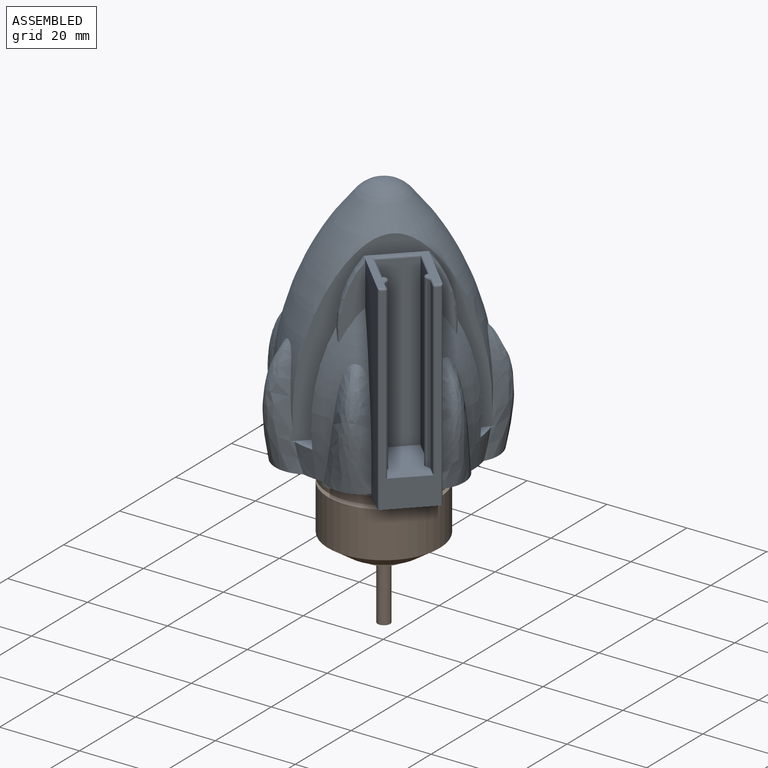
[diagram: assembled view]
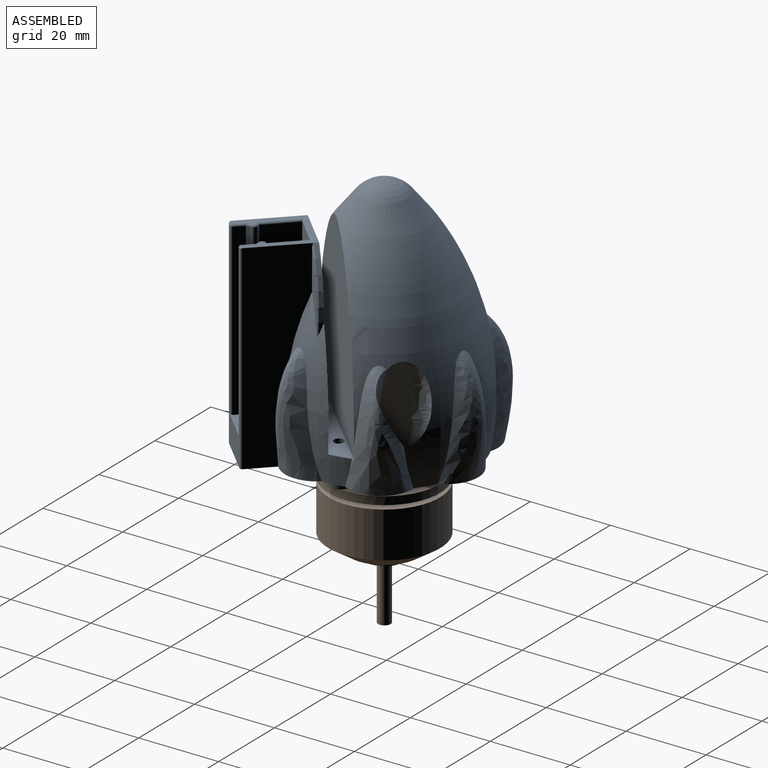
[diagram: assembled view, second angle]
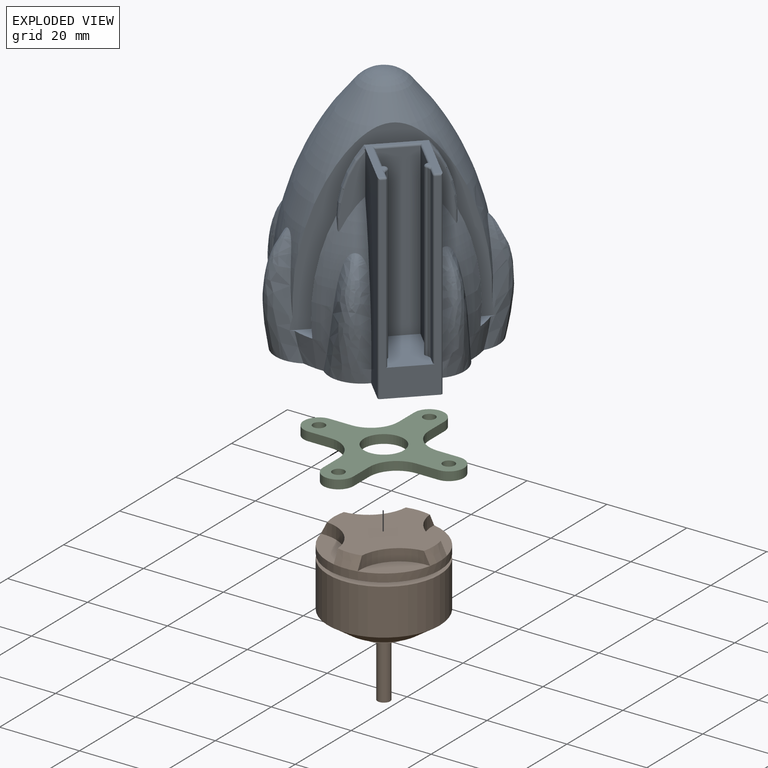
[diagram: exploded view]
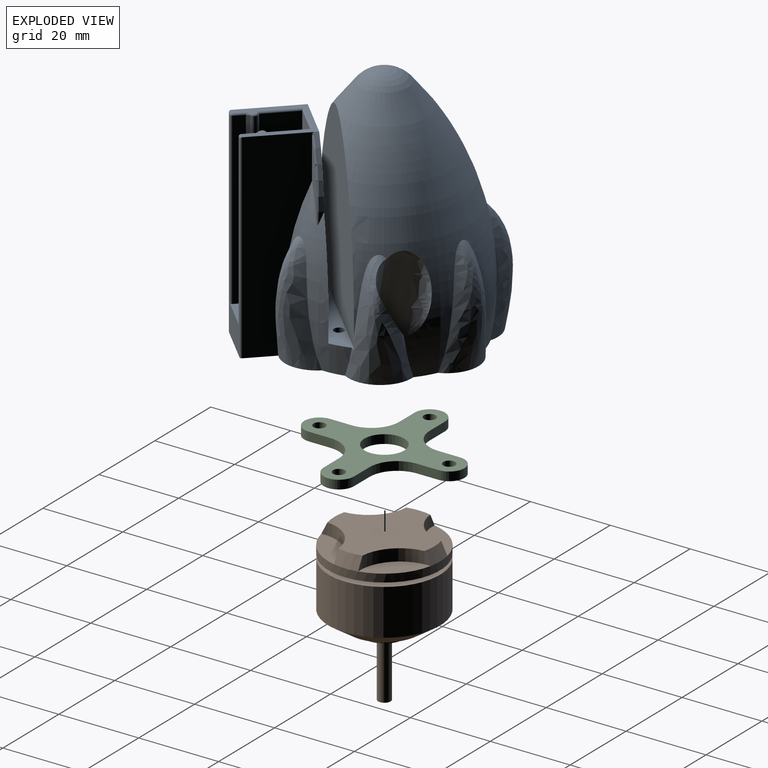
[diagram: exploded view, second angle]
ASSEMBLY  parts=3 mates=4
PART A: 67 faces, bbox 63x60.9x63 mm
  f0: plane 16x13.53mm, normal (0,0,1), area 58.5mm2, adj f3,f35,f39,f42,f43,f50,f52,f54
  f1: plane 1x1mm, normal (0,0,1), area 0.8mm2, adj f57
  f2: plane 1x1mm, normal (0,0,1), area 0.8mm2, adj f53
  f3: plane 43.01x35.56mm, normal (0,1,0), area 1233mm2, adj f0,f5,f8,f26,f42,f43
  f4: plane 17.41x5.25mm, normal (0,-1,0), area 45.6mm2, adj f8,f39,f46,f47
  f5: revolved ~38.97x15.23mm, area 231.5mm2, adj f3,f6,f12,f15,f26,f35,f36,f37
  f6: bspline ~30x16.24mm, area 285.9mm2, adj f5,f12,f35
  f7: bspline ~30x16.24mm, area 285.9mm2, adj f8,f12,f39
  f8: revolved ~38.97x15.23mm, area 231.5mm2, adj f3,f4,f7,f12,f14,f26,f38,f39
  f9: revolved ~57.31x46.2mm, area 3524.6mm2, adj f12,f13,f14,f15,f16,f17,f18,f25
  f10: cylinder r=1.25mm len=7mm, axis (0,0,-1), area 55mm2, adj f12,f26
  f11: cylinder r=1.25mm len=7mm, axis (0,0,-1), area 55mm2, adj f12,f26
  f12: plane 56.26x49.17mm, normal (0,0,-1), area 1642.6mm2, adj f5,f6,f7,f8,f9,f10,f11,f13
  f13: bspline ~27.72x12.38mm, area 340.6mm2, adj f9,f12
  f14: bspline ~27.72x13.67mm, area 342.4mm2, adj f8,f9,f12,f26,f27
  f15: bspline ~27.72x13.67mm, area 283.8mm2, adj f5,f9,f12,f25,f26,f27
  f16: bspline ~27.72x12.38mm, area 340.6mm2, adj f9,f12
  f17: bspline ~27.72x14.02mm, area 340.6mm2, adj f9,f12
  f18: sphere r=8mm, area 135.4mm2, adj f9
  f19: cylinder r=1.25mm len=10mm, axis (0,0,-1), area 78.5mm2, adj f12,f20
  f20: plane 2.5x2.5mm, normal (0,0,-1), area 4.9mm2, adj f19
  f21: cylinder r=1.25mm len=10mm, axis (0,0,-1), area 78.5mm2, adj f12,f22
  f22: plane 2.5x2.5mm, normal (0,0,-1), area 4.9mm2, adj f21
  f23: cylinder r=5mm len=10mm, axis (0,0,-1), area 314.2mm2, adj f12,f24
  f24: plane 10x10mm, normal (0,0,-1), area 78.5mm2, adj f23
  f25: bspline ~30x28.51mm, area 824.5mm2, adj f9,f12,f15
  f26: plane 42.89x4.77mm, normal (0,0,1), area 173.4mm2, adj f3,f5,f8,f10,f11,f14,f15,f27
  f27: plane 45.41x42.96mm, normal (0,-1,0), area 1480.8mm2, adj f9,f14,f15,f26
  f28: plane 42.5x9.53mm, normal (0,-1,0), area 404.8mm2, adj f29,f30,f31,f55
  f29: plane 42.5x9mm, normal (1,0,0), area 382.5mm2, adj f28,f31,f41,f54
  f30: plane 42.5x9mm, normal (-1,0,0), area 382.5mm2, adj f28,f31,f32,f56
  f31: plane 15x10.53mm, normal (0,0,1), area 139.5mm2, adj f28,f29,f30,f32,f33,f34,f40,f41
  f32: cylinder r=1mm len=42.5mm, axis (0,0,-1), area 111.3mm2, adj f30,f31,f57,f63
  f33: plane 42.5x2.77mm, normal (-1,0,0), area 117.6mm2, adj f31,f59,f62,f63
  f34: plane 49.5x12.53mm, normal (0,-1,0), area 172.7mm2, adj f12,f31,f48,f49,f50,f58,f60,f62
  f35: plane 52.97x17.97mm, normal (1,0,0), area 524mm2, adj f0,f5,f6,f12,f36,f44,f58
  f36: plane 17.41x5.25mm, normal (0,-1,0), area 45.6mm2, adj f5,f35,f44,f45
  f37: plane 2.41x1.04mm, normal (1,0,0), area 1.2mm2, adj f5,f42,f45
  f38: plane 2.41x1.04mm, normal (-1,0,0), area 1.2mm2, adj f8,f43,f47
  f39: plane 52.97x17.97mm, normal (-1,0,0), area 524mm2, adj f0,f4,f7,f8,f12,f46,f48
  f40: plane 42.5x2.77mm, normal (1,0,0), area 117.6mm2, adj f31,f49,f52,f65
  f41: cylinder r=1mm len=42.5mm, axis (0,0,-1), area 111.3mm2, adj f29,f31,f53,f65
  f42: cylinder r=23.82mm len=15.51mm, axis (0,-1,0), area 16.9mm2, adj f0,f3,f37,f44
  f43: cylinder r=23.82mm len=15.51mm, axis (0,-1,0), area 16.9mm2, adj f0,f3,f38,f46
  f44: torus R=23.32mm, axis (0,1,0), area 12.9mm2, adj f35,f36,f42,f45
  f45: cylinder r=0.5mm len=3.01mm, axis (0,0,-1), area 2.2mm2, adj f5,f36,f37,f44
  f46: torus R=23.32mm, axis (0,-1,0), area 12.9mm2, adj f4,f39,f43,f47
  f47: cylinder r=0.5mm len=3.01mm, axis (0,0,-1), area 2.2mm2, adj f4,f8,f38,f46
  f48: cylinder r=0.5mm len=50mm, axis (0,0,1), area 39.1mm2, adj f12,f34,f39,f50
  f49: cylinder r=0.5mm len=42.5mm, axis (0,0,1), area 33.4mm2, adj f31,f34,f40,f51
  f50: cylinder r=0.5mm len=1.5mm, axis (1,0,0), area 1mm2, adj f0,f34,f48,f51
  f51: sphere r=0.5mm, area 0.4mm2, adj f49,f50,f52
  f52: cylinder r=0.5mm len=4.5mm, axis (0,-1,0), area 2.5mm2, adj f0,f40,f51,f66
  f53: torus R=0.5mm, axis (0,0,1), area 2.3mm2, adj f2,f41,f54,f66
  f54: cylinder r=0.5mm len=10.5mm, axis (0,-1,0), area 7.7mm2, adj f0,f29,f53,f55
  f55: cylinder r=0.5mm len=10.53mm, axis (1,0,0), area 7.9mm2, adj f0,f28,f54,f56
  f56: cylinder r=0.5mm len=10.5mm, axis (0,1,0), area 7.7mm2, adj f0,f30,f55,f57
  f57: torus R=0.5mm, axis (0,0,1), area 2.3mm2, adj f1,f32,f56,f64
  f58: cylinder r=0.5mm len=50mm, axis (0,0,-1), area 39.1mm2, adj f12,f34,f35,f60
  f59: cylinder r=0.5mm len=4.5mm, axis (0,1,0), area 2.5mm2, adj f0,f33,f61,f64
  f60: cylinder r=0.5mm len=1.5mm, axis (-1,0,0), area 1mm2, adj f0,f34,f58,f61
  f61: sphere r=0.5mm, area 0.4mm2, adj f59,f60,f62
  f62: cylinder r=0.5mm len=42.5mm, axis (0,0,-1), area 33.4mm2, adj f31,f33,f34,f61
  f63: plane 42.5x0.87mm, normal (-0.87,-0.5,0), area 42.5mm2, adj f31,f32,f33,f64
  f64: bspline ~1.78x1mm, area 0.5mm2, adj f57,f59,f63
  f65: plane 42.5x0.87mm, normal (0.87,-0.5,0), area 42.5mm2, adj f31,f40,f41,f66
  f66: bspline ~1.78x1mm, area 0.5mm2, adj f52,f53,f65
PART B: 24 faces, bbox 28x28x38 mm
  f0: plane 25x25mm, normal (0,0,-1), area 345.1mm2, adj f1,f2,f3,f4,f16,f18,f20,f22
  f1: cone r=12.5mm half-angle=26.6deg, axis (0,0,1), area 20.2mm2, adj f0,f5,f16,f22
  f2: cone r=12.5mm half-angle=26.6deg, axis (0,0,1), area 20.2mm2, adj f0,f5,f20,f22
  f3: cone r=12.5mm half-angle=26.6deg, axis (0,0,1), area 20.2mm2, adj f0,f5,f18,f20
  f4: cone r=12.5mm half-angle=26.6deg, axis (0,0,1), area 20.2mm2, adj f0,f5,f16,f18
  f5: cylinder r=14mm len=28mm, axis (0,0,1), area 175.9mm2, adj f1,f2,f3,f4,f6,f17,f19,f21
  f6: plane 28x28mm, normal (0,0,1), area 361.3mm2, adj f5,f7
  f7: cylinder r=9mm len=18mm, axis (0,0,1), area 56.5mm2, adj f6,f8
  f8: plane 28x28mm, normal (0,0,-1), area 361.3mm2, adj f7,f9
  f9: cylinder r=14mm len=28mm, axis (0,0,1), area 1011.6mm2, adj f8,f10
  f10: cone r=14mm half-angle=56.3deg, axis (0,0,-1), area 451mm2, adj f9,f11
  f11: plane 17.5x17.5mm, normal (0,0,1), area 162mm2, adj f10,f12
  f12: cylinder r=5mm len=10mm, axis (0,0,1), area 62.8mm2, adj f11,f13
  f13: plane 10x10mm, normal (0,0,1), area 70.8mm2, adj f12,f14
  f14: cylinder r=1.57mm len=15mm, axis (0,0,1), area 148mm2, adj f13,f15
  f15: plane 3.14x3.14mm, normal (0,0,1), area 7.7mm2, adj f14
  f16: cylinder r=10mm len=10.7mm, axis (0,0,-1), area 46.7mm2, adj f0,f1,f4,f17
  f17: plane 10.7x10.7mm, normal (0,0,-1), area 58.6mm2, adj f5,f16
  f18: cylinder r=10mm len=10.7mm, axis (0,0,-1), area 46.7mm2, adj f0,f3,f4,f19
  f19: plane 10.7x10.7mm, normal (0,0,-1), area 58.6mm2, adj f5,f18
  f20: cylinder r=10mm len=10.7mm, axis (0,0,-1), area 46.7mm2, adj f0,f2,f3,f21
  f21: plane 10.7x10.7mm, normal (0,0,-1), area 58.6mm2, adj f5,f20
  f22: cylinder r=10mm len=10.7mm, axis (0,0,-1), area 46.7mm2, adj f0,f1,f2,f23
  f23: plane 10.7x10.7mm, normal (0,0,-1), area 58.6mm2, adj f5,f22
PART C: 23 faces, bbox 40.1x40.1x2.2 mm
  f0: cylinder r=7mm len=7mm, axis (0,0,1), area 24.2mm2, adj f1,f19,f21,f22
  f1: plane 5.45x2.2mm, normal (0,-1,0), area 12mm2, adj f0,f2,f21,f22
  f2: cylinder r=3.8mm len=7.6mm, axis (0,0,1), area 26.3mm2, adj f1,f3,f21,f22
  f3: plane 5.45x2.2mm, normal (0,1,0), area 12mm2, adj f2,f4,f21,f22
  f4: cylinder r=7mm len=7mm, axis (0,0,1), area 24.2mm2, adj f3,f5,f21,f22
  f5: plane 5.45x2.2mm, normal (-1,0,0), area 12mm2, adj f4,f6,f21,f22
  f6: cylinder r=3.8mm len=7.6mm, axis (0,0,1), area 26.3mm2, adj f5,f7,f21,f22
  f7: plane 5.45x2.2mm, normal (1,0,0), area 12mm2, adj f6,f8,f21,f22
  f8: cylinder r=7mm len=7mm, axis (0,0,1), area 24.2mm2, adj f7,f9,f21,f22
  f9: plane 5.45x2.2mm, normal (0,1,0), area 12mm2, adj f8,f10,f21,f22
  f10: cylinder r=3.8mm len=7.6mm, axis (0,0,1), area 26.3mm2, adj f9,f11,f21,f22
  f11: plane 5.45x2.2mm, normal (0,-1,0), area 12mm2, adj f10,f12,f21,f22
  f12: cylinder r=7mm len=7mm, axis (0,0,1), area 24.2mm2, adj f11,f13,f21,f22
  f13: plane 5.45x2.2mm, normal (1,0,0), area 12mm2, adj f12,f14,f21,f22
  f14: cylinder r=3.8mm len=7.6mm, axis (0,0,1), area 26.3mm2, adj f13,f19,f21,f22
  f15: cylinder r=1.5mm len=3mm, axis (0,0,1), area 20.7mm2, adj f21,f22
  f16: cylinder r=1.5mm len=3mm, axis (0,0,1), area 20.7mm2, adj f21,f22
  f17: cylinder r=1.5mm len=3mm, axis (0,0,1), area 20.7mm2, adj f21,f22
  f18: cylinder r=1.5mm len=3mm, axis (0,0,1), area 20.7mm2, adj f21,f22
  f19: plane 5.45x2.2mm, normal (-1,0,0), area 12mm2, adj f0,f14,f21,f22
  f20: cylinder r=5mm len=10mm, axis (0,0,1), area 69.1mm2, adj f21,f22
  f21: plane 40.1x40.1mm, normal (0,0,-1), area 462.2mm2, adj f0,f1,f2,f3,f4,f5,f6,f7
  f22: plane 40.1x40.1mm, normal (0,0,1), area 462.2mm2, adj f0,f1,f2,f3,f4,f5,f6,f7
PLACE A rot(axis=(0,0,1),45deg) t=(-0.84,-7.09,0.47)mm
PLACE B rot(axis=(0,1,0),180deg) t=(-0.84,-7.09,-1.73)mm
PLACE C rot(axis=(0,1,0),180deg) t=(-0.84,-7.09,-1.73)mm
MATE revolute A.f10 <-> C.f17  axis (0,0,-1) through (15.41,-7.09,0.47)mm
MATE revolute C.f10 <-> A.f21  axis (0,0,1) through (-17.09,-7.09,0.47)mm
MATE cylindrical B.f1 <-> A.f23  axis (0,0,-1) through (-0.84,-7.09,-13.48)mm
MATE fastened B.f1 <-> C.f20  axis (0,0,1) through (-0.84,-7.09,-1.73)mm
